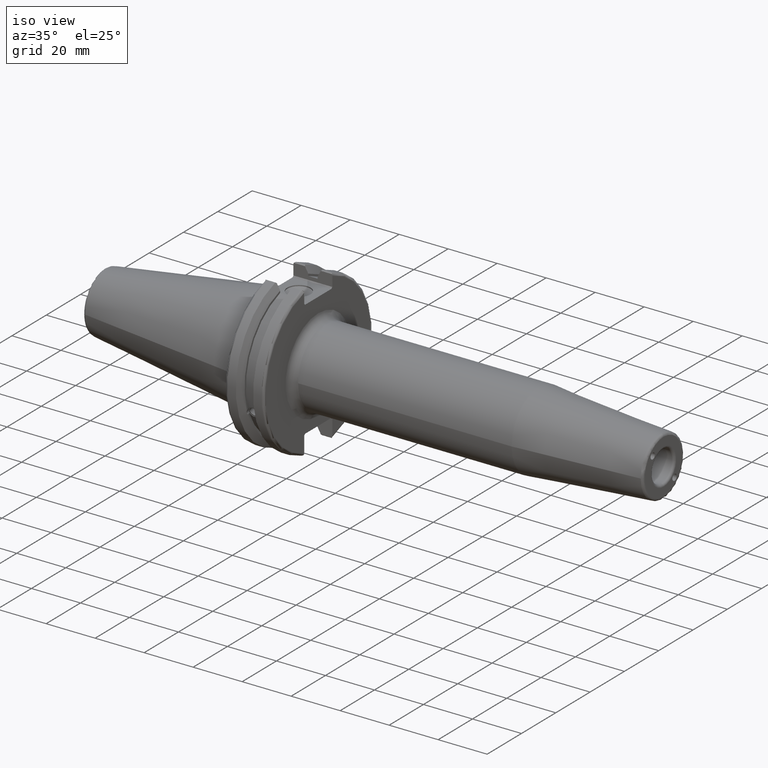
[diagram: clean part render]
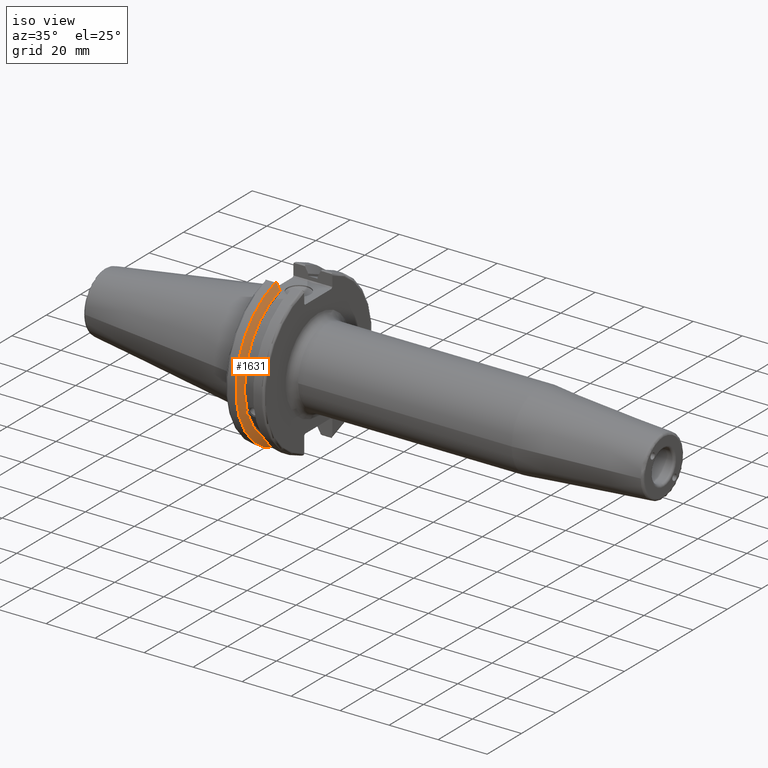
[diagram: same view with one face highlighted and labeled with its STEP entity id]
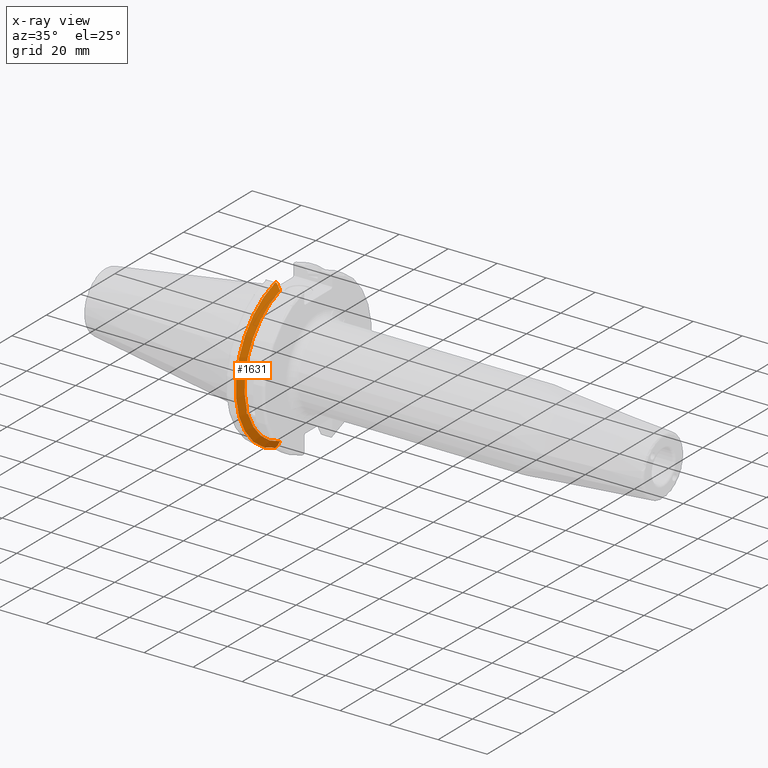
[diagram: x-ray of the same camera — body ghosted, the highlighted face saturated]
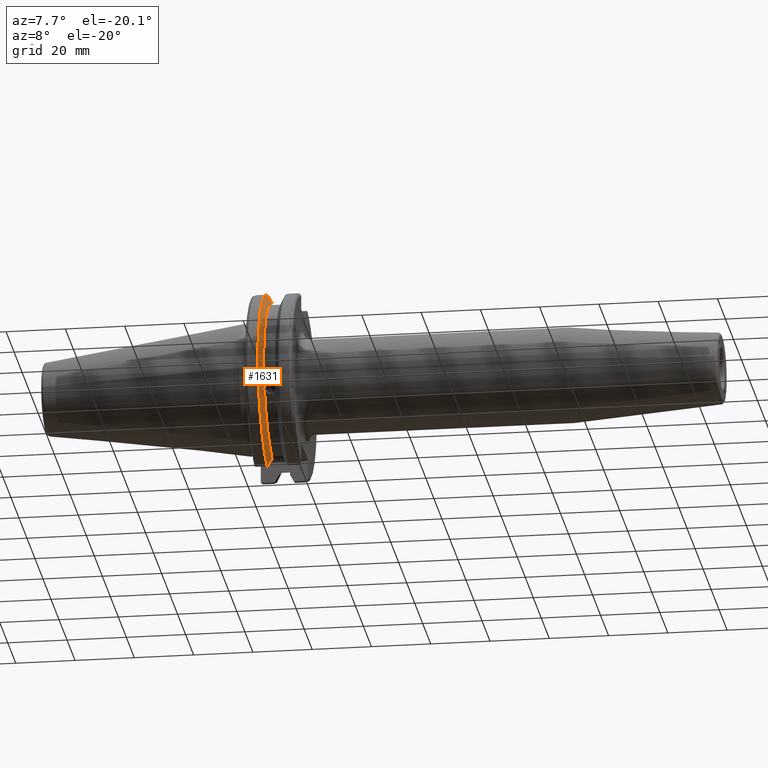
[diagram: same view with one face highlighted and labeled with its STEP entity id]
A machine part, iso view. The second image highlights one B-rep face of the part: STEP entity #1631.
The next image is the same camera in x-ray: the body ghosted, the highlighted face saturated — about 0% of this face is hidden behind the body in this view.
A second angle (auxiliary view) of the same face is appended — the face is thin or edge-on in the first view.
In plain terms, the highlighted conical surface has half-angle 60 deg.
Its self-contained STEP definition (entity closure, byte-faithful):
#25=(
BOUNDED_CURVE()
B_SPLINE_CURVE(2,(#2943,#2944,#2945),.UNSPECIFIED.,.F.,.F.)
B_SPLINE_CURVE_WITH_KNOTS((3,3),(0.,0.276549142796136),.UNSPECIFIED.)
CURVE()
GEOMETRIC_REPRESENTATION_ITEM()
RATIONAL_B_SPLINE_CURVE((1.,1.00095203903316,1.00031614444813))
REPRESENTATION_ITEM('')
);
#26=(
BOUNDED_CURVE()
B_SPLINE_CURVE(2,(#2955,#2956,#2957),.UNSPECIFIED.,.F.,.F.)
B_SPLINE_CURVE_WITH_KNOTS((3,3),(0.0550586467392022,0.33160778953585),
 .UNSPECIFIED.)
CURVE()
GEOMETRIC_REPRESENTATION_ITEM()
RATIONAL_B_SPLINE_CURVE((1.00031614445148,1.00095203904325,1.))
REPRESENTATION_ITEM('')
);
#27=(
BOUNDED_CURVE()
B_SPLINE_CURVE(2,(#2990,#2991,#2992),.UNSPECIFIED.,.F.,.F.)
B_SPLINE_CURVE_WITH_KNOTS((3,3),(0.,0.0639048713676282),.UNSPECIFIED.)
CURVE()
GEOMETRIC_REPRESENTATION_ITEM()
RATIONAL_B_SPLINE_CURVE((1.,1.00028444218284,1.00047644010574))
REPRESENTATION_ITEM('')
);
#28=(
BOUNDED_CURVE()
B_SPLINE_CURVE(2,(#2998,#2999,#3000),.UNSPECIFIED.,.F.,.F.)
B_SPLINE_CURVE_WITH_KNOTS((3,3),(0.329353533631205,0.393258405001025),
 .UNSPECIFIED.)
CURVE()
GEOMETRIC_REPRESENTATION_ITEM()
RATIONAL_B_SPLINE_CURVE((1.00047644010572,1.00028444218283,1.))
REPRESENTATION_ITEM('')
);
#37=B_SPLINE_CURVE_WITH_KNOTS('',3,(#2553,#2554,#2555,#2556,#2557,#2558,
#2559,#2560,#2561,#2562,#2563,#2564,#2565,#2566),.UNSPECIFIED.,.F.,.F.,
(4,2,2,2,2,2,4),(0.451995700189024,0.464547828547663,0.504528771685167,
0.544509714822672,0.584490657960178,0.624471601097683,0.63702372945632),
 .UNSPECIFIED.);
#73=CONICAL_SURFACE('',#1843,30.3546886482472,1.0471975511966);
#464=FACE_OUTER_BOUND('',#574,.T.);
#574=EDGE_LOOP('',(#1520,#1521,#1522,#1523,#1524,#1525,#1526,#1527));
#611=CIRCLE('',#1733,28.9593772964944);
#635=CIRCLE('',#1793,31.75);
#653=CIRCLE('',#1844,28.9593772964944);
#704=VERTEX_POINT('',#2550);
#705=VERTEX_POINT('',#2552);
#722=VERTEX_POINT('',#2645);
#784=VERTEX_POINT('',#2940);
#785=VERTEX_POINT('',#2942);
#788=VERTEX_POINT('',#2954);
#792=VERTEX_POINT('',#2988);
#793=VERTEX_POINT('',#2994);
#879=EDGE_CURVE('',#705,#704,#37,.T.);
#903=EDGE_CURVE('',#705,#722,#611,.T.);
#990=EDGE_CURVE('',#785,#784,#25,.T.);
#996=EDGE_CURVE('',#788,#722,#26,.T.);
#1004=EDGE_CURVE('',#792,#784,#27,.T.);
#1006=EDGE_CURVE('',#792,#793,#635,.T.);
#1007=EDGE_CURVE('',#788,#793,#28,.T.);
#1051=EDGE_CURVE('',#785,#704,#653,.T.);
#1520=ORIENTED_EDGE('',*,*,#879,.T.);
#1521=ORIENTED_EDGE('',*,*,#1051,.F.);
#1522=ORIENTED_EDGE('',*,*,#990,.T.);
#1523=ORIENTED_EDGE('',*,*,#1004,.F.);
#1524=ORIENTED_EDGE('',*,*,#1006,.T.);
#1525=ORIENTED_EDGE('',*,*,#1007,.F.);
#1526=ORIENTED_EDGE('',*,*,#996,.T.);
#1527=ORIENTED_EDGE('',*,*,#903,.F.);
#1631=ADVANCED_FACE('',(#464),#73,.T.);
#1733=AXIS2_PLACEMENT_3D('',#2646,#2034,#2035);
#1793=AXIS2_PLACEMENT_3D('',#2996,#2197,#2198);
#1843=AXIS2_PLACEMENT_3D('',#3116,#2318,#2319);
#1844=AXIS2_PLACEMENT_3D('',#3117,#2320,#2321);
#2034=DIRECTION('center_axis',(1.,0.,0.));
#2035=DIRECTION('ref_axis',(0.,0.,-1.));
#2197=DIRECTION('center_axis',(1.,0.,0.));
#2198=DIRECTION('ref_axis',(0.,0.,-1.));
#2318=DIRECTION('center_axis',(-1.,0.,0.));
#2319=DIRECTION('ref_axis',(0.,-1.,-1.22464679914735E-16));
#2320=DIRECTION('center_axis',(1.,0.,0.));
#2321=DIRECTION('ref_axis',(0.,0.,-1.));
#2550=CARTESIAN_POINT('',(9.2191,-27.4956274489925,-9.09043478536245));
#2552=CARTESIAN_POINT('',(9.2191,-26.9060914640648,-10.7101715919071));
#2553=CARTESIAN_POINT('Ctrl Pts',(9.2191,-26.9060914640648,-10.7101715919071));
#2554=CARTESIAN_POINT('Ctrl Pts',(9.20497959280038,-26.9406927482839,-10.6893765730703));
#2555=CARTESIAN_POINT('Ctrl Pts',(9.19150701821433,-26.9744191989197,-10.6676007180673));
#2556=CARTESIAN_POINT('Ctrl Pts',(9.13811855884095,-27.1113422433189,-10.5723885976054));
#2557=CARTESIAN_POINT('Ctrl Pts',(9.09998029158246,-27.2180531796526,-10.4801333026531));
#2558=CARTESIAN_POINT('Ctrl Pts',(9.04778935539424,-27.3968610665578,-10.2639559818059));
#2559=CARTESIAN_POINT('Ctrl Pts',(9.0341,-27.4684373304961,-10.139516340139));
#2560=CARTESIAN_POINT('Ctrl Pts',(9.0341,-27.559599249844,-9.8890510252165));
#2561=CARTESIAN_POINT('Ctrl Pts',(9.04778935539424,-27.5847569104122,-9.74771639360671));
#2562=CARTESIAN_POINT('Ctrl Pts',(9.09998029158246,-27.5867382255984,-9.46717946402648));
#2563=CARTESIAN_POINT('Ctrl Pts',(9.13811855884095,-27.5642934663232,-9.32791534028655));
#2564=CARTESIAN_POINT('Ctrl Pts',(9.19150701821434,-27.5206055003512,-9.16696618806877));
#2565=CARTESIAN_POINT('Ctrl Pts',(9.20497959280038,-27.5087667900418,-9.12860597076217));
#2566=CARTESIAN_POINT('Ctrl Pts',(9.2191,-27.4956274489925,-9.09043478536245));
#2645=CARTESIAN_POINT('',(9.2191,-8.19,-27.7771386827498));
#2646=CARTESIAN_POINT('Origin',(9.2191,0.,0.));
#2940=CARTESIAN_POINT('',(7.88668530351257,-8.19,30.1755016258903));
#2942=CARTESIAN_POINT('',(9.2191,-8.19,27.7771386827498));
#2943=CARTESIAN_POINT('Ctrl Pts',(9.2191,-8.19,27.7771386827498));
#2944=CARTESIAN_POINT('Ctrl Pts',(8.58046356152393,-8.19,28.9303689539705));
#2945=CARTESIAN_POINT('Ctrl Pts',(7.88668530351257,-8.19,30.1755016258903));
#2954=CARTESIAN_POINT('',(7.88668530351256,-8.19,-30.1755016258903));
#2955=CARTESIAN_POINT('Ctrl Pts',(7.88668530351256,-8.19,-30.1755016258903));
#2956=CARTESIAN_POINT('Ctrl Pts',(8.5804635615235,-8.19,-28.9303689539712));
#2957=CARTESIAN_POINT('Ctrl Pts',(9.2191,-8.19,-27.7771386827498));
#2988=CARTESIAN_POINT('',(7.60793323092436,-8.67204822802685,30.5427254764662));
#2990=CARTESIAN_POINT('Ctrl Pts',(7.60793323092436,-8.67204822802686,30.5427254764662));
#2991=CARTESIAN_POINT('Ctrl Pts',(7.74899148121626,-8.42917748262648,30.357706789263));
#2992=CARTESIAN_POINT('Ctrl Pts',(7.88668530351257,-8.19,30.1755016258903));
#2994=CARTESIAN_POINT('',(7.60793323092436,-8.67204822802685,-30.5427254764662));
#2996=CARTESIAN_POINT('Origin',(7.60793323092436,0.,0.));
#2998=CARTESIAN_POINT('Ctrl Pts',(7.88668530351256,-8.19,-30.1755016258903));
#2999=CARTESIAN_POINT('Ctrl Pts',(7.74899148121159,-8.42917748263467,-30.3577067892692));
#3000=CARTESIAN_POINT('Ctrl Pts',(7.60793323092435,-8.67204822802687,-30.5427254764662));
#3116=CARTESIAN_POINT('Origin',(8.41351661546218,0.,0.));
#3117=CARTESIAN_POINT('Origin',(9.2191,0.,0.));